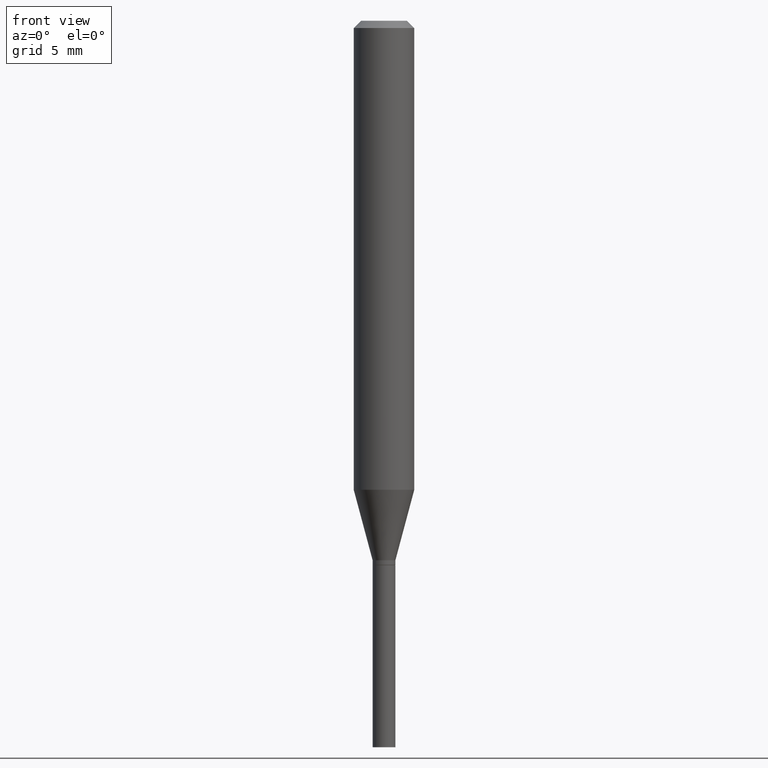
[diagram: clean part render]
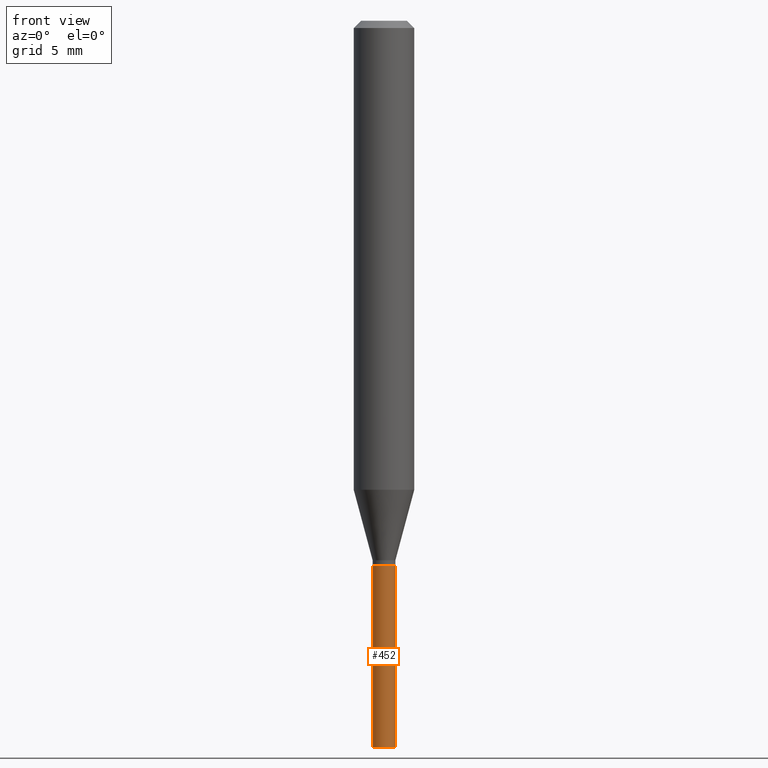
[diagram: same view with one face highlighted and labeled with its STEP entity id]
A machine part, front view. The second image highlights one B-rep face of the part: STEP entity #452.
In plain terms, the highlighted cylindrical surface (edge-blend (fillet) strip) has radius 0.5969 mm, axis along (-0, 0, 1).
Its self-contained STEP definition (entity closure, byte-faithful):
#18 = DIRECTION ( 'NONE',  ( 1.000000000000000000, -6.982962677686269866E-15, 0.000000000000000000 ) ) ;
#32 = CARTESIAN_POINT ( 'NONE',  ( -0.02350000000000000352, 1.669775429036235687E-16, -1.155949746209903035E-30 ) ) ;
#38 = CIRCLE ( 'NONE', #429, 0.02350000000000000352 ) ;
#62 = EDGE_LOOP ( 'NONE', ( #89, #386, #166, #272 ) ) ;
#66 = CARTESIAN_POINT ( 'NONE',  ( 0.02350000000000000352, -1.640996229256272766E-16, 1.145901542312045115E-30 ) ) ;
#82 = CARTESIAN_POINT ( 'NONE',  ( -0.02350000000000000352, -4.413845973658583505E-15, -1.124000000000000110 ) ) ;
#87 = VERTEX_POINT ( 'NONE', #112 ) ;
#89 = ORIENTED_EDGE ( 'NONE', *, *, #211, .F. ) ;
#112 = CARTESIAN_POINT ( 'NONE',  ( -0.02350000000000000352, -4.413845973658583505E-15, -1.500000000000000222 ) ) ;
#124 = VECTOR ( 'NONE', #149, 39.37007874015748143 ) ;
#129 = EDGE_CURVE ( 'NONE', #180, #424, #181, .T. ) ;
#137 = DIRECTION ( 'NONE',  ( -2.445468806185136597E-29, 3.491481338843145583E-15, 1.000000000000000000 ) ) ;
#149 = DIRECTION ( 'NONE',  ( -2.445468806185136877E-29, 3.491481338843145188E-15, 1.000000000000000000 ) ) ;
#166 = ORIENTED_EDGE ( 'NONE', *, *, #129, .T. ) ;
#174 = CARTESIAN_POINT ( 'NONE',  ( 2.748706938152093629E-29, -3.924425024859695428E-15, -1.124000000000000110 ) ) ;
#180 = VERTEX_POINT ( 'NONE', #462 ) ;
#181 = LINE ( 'NONE', #66, #252 ) ;
#186 = CARTESIAN_POINT ( 'NONE',  ( 0.000000000000000000, 0.000000000000000000, 0.000000000000000000 ) ) ;
#203 = AXIS2_PLACEMENT_3D ( 'NONE', #174, #137, #375 ) ;
#205 = CARTESIAN_POINT ( 'NONE',  ( 3.668203209277704895E-29, -5.237222008264718177E-15, -1.500000000000000222 ) ) ;
#210 = DIRECTION ( 'NONE',  ( -2.445468806185136597E-29, 3.491481338843145583E-15, 1.000000000000000000 ) ) ;
#211 = EDGE_CURVE ( 'NONE', #87, #307, #216, .T. ) ;
#216 = LINE ( 'NONE', #32, #124 ) ;
#252 = VECTOR ( 'NONE', #318, 39.37007874015748143 ) ;
#272 = ORIENTED_EDGE ( 'NONE', *, *, #349, .F. ) ;
#307 = VERTEX_POINT ( 'NONE', #82 ) ;
#318 = DIRECTION ( 'NONE',  ( -2.445468806185136877E-29, 3.491481338843145188E-15, 1.000000000000000000 ) ) ;
#323 = CYLINDRICAL_SURFACE ( 'NONE', #395, 0.02350000000000000352 ) ;
#325 = DIRECTION ( 'NONE',  ( 1.000000000000000000, -6.982962677686265922E-15, 4.876176775795935793E-29 ) ) ;
#349 = EDGE_CURVE ( 'NONE', #307, #424, #391, .T. ) ;
#361 = EDGE_CURVE ( 'NONE', #87, #180, #38, .T. ) ;
#375 = DIRECTION ( 'NONE',  ( 1.000000000000000000, -6.982962677686269866E-15, 0.000000000000000000 ) ) ;
#378 = CARTESIAN_POINT ( 'NONE',  ( 0.02350000000000000352, -4.088524647785323075E-15, -1.124000000000000110 ) ) ;
#386 = ORIENTED_EDGE ( 'NONE', *, *, #361, .T. ) ;
#391 = CIRCLE ( 'NONE', #203, 0.02350000000000000352 ) ;
#395 = AXIS2_PLACEMENT_3D ( 'NONE', #186, #451, #325 ) ;
#424 = VERTEX_POINT ( 'NONE', #378 ) ;
#426 = FACE_OUTER_BOUND ( 'NONE', #62, .T. ) ;
#429 = AXIS2_PLACEMENT_3D ( 'NONE', #205, #210, #18 ) ;
#451 = DIRECTION ( 'NONE',  ( -2.445468806185136597E-29, 3.491481338843145583E-15, 1.000000000000000000 ) ) ;
#452 = ADVANCED_FACE ( 'NONE', ( #426 ), #323, .T. ) ;
#462 = CARTESIAN_POINT ( 'NONE',  ( 0.02350000000000000352, -5.401321631190345823E-15, -1.500000000000000222 ) ) ;